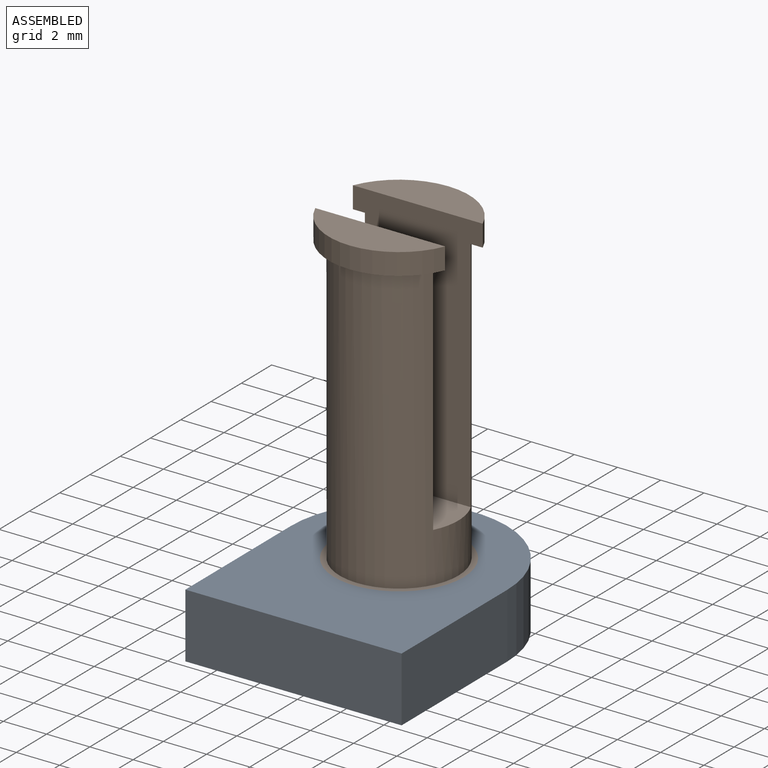
[diagram: assembled view]
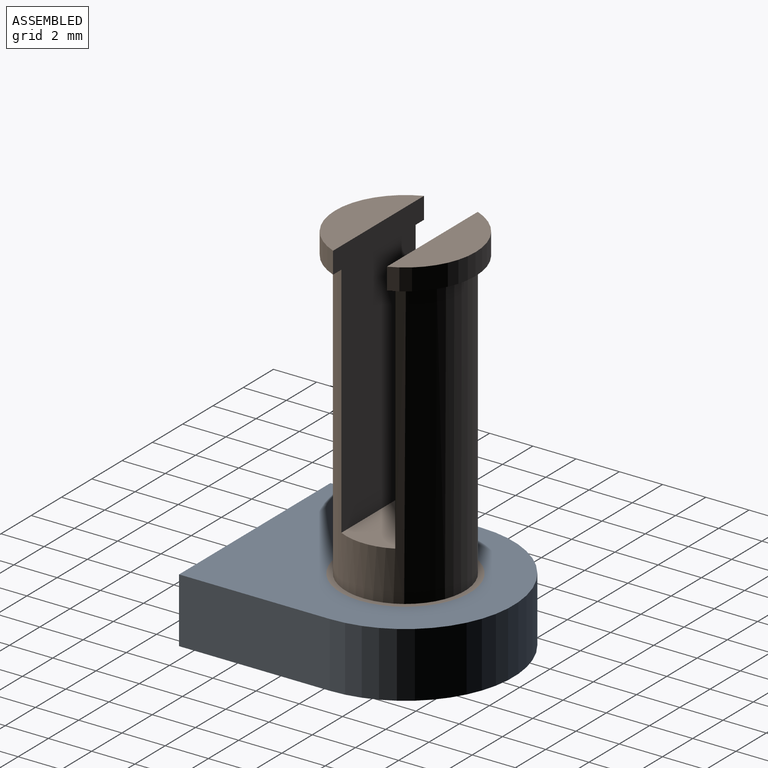
[diagram: assembled view, second angle]
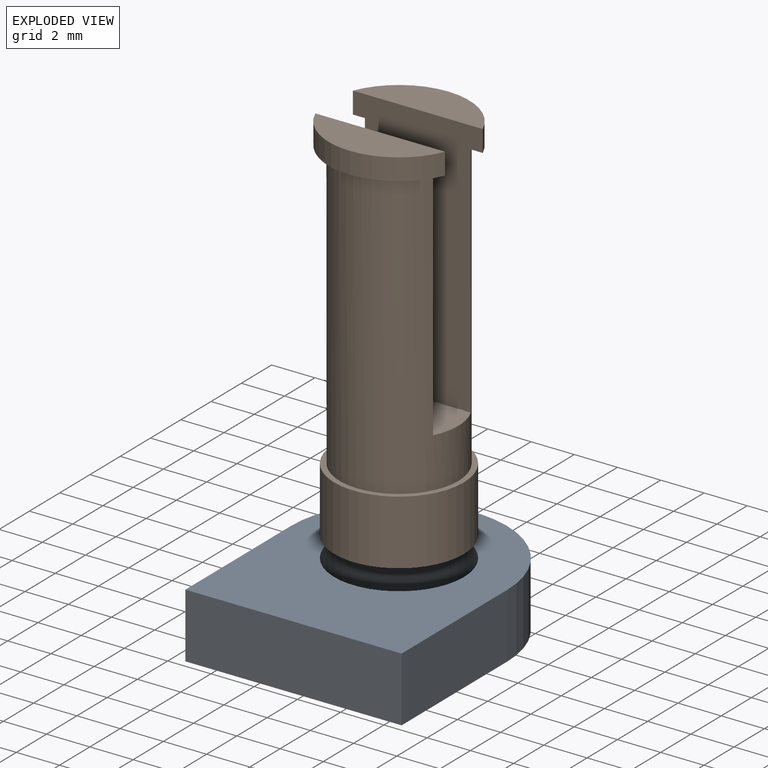
[diagram: exploded view]
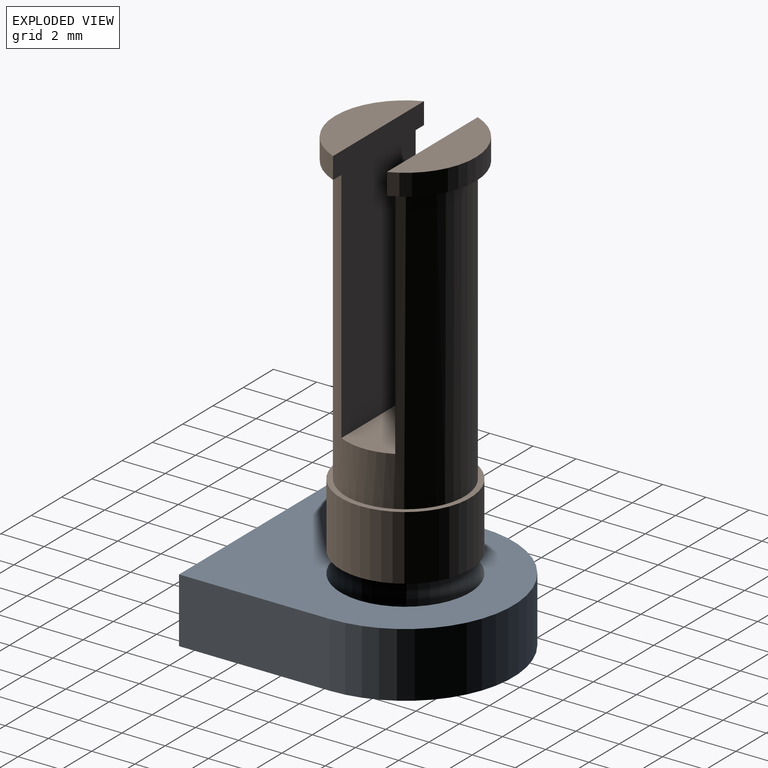
[diagram: exploded view, second angle]
ASSEMBLY  parts=2 mates=2
PART A: 7 faces, bbox 10x12x3 mm
  f0: plane 6.97x3mm, normal (-1,0,0), area 20.9mm2, adj f1,f4,f5,f6
  f1: plane 10x3mm, normal (0,-1,0), area 30mm2, adj f0,f2,f5,f6
  f2: plane 6.97x3mm, normal (1,0,0), area 20.9mm2, adj f1,f4,f5,f6
  f3: cylinder r=3mm len=6mm, axis (0,0,-1), area 56.5mm2, adj f5,f6
  f4: cylinder r=5mm len=10mm, axis (0,0,-1), area 47.1mm2, adj f0,f2,f5,f6
  f5: plane 11.97x10mm, normal (0,0,1), area 80.7mm2, adj f0,f1,f2,f3,f4
  f6: plane 11.97x10mm, normal (0,0,-1), area 80.7mm2, adj f0,f1,f2,f3,f4
PART B: 13 faces, bbox 6x6.5x17.3 mm
  f0: cylinder r=2.75mm len=13.3mm, axis (0,0,-1), area 173mm2, adj f3,f6,f7,f8,f9,f11
  f1: cylinder r=3.25mm len=6mm, axis (0,0,-1), area 7.7mm2, adj f2,f3,f8
  f2: plane 6x2.01mm, normal (0,0,1), area 8.7mm2, adj f1,f8
  f3: plane 6x2.01mm, normal (0,0,-1), area 3.4mm2, adj f0,f1,f8
  f4: cylinder r=3.25mm len=6mm, axis (0,0,-1), area 7.7mm2, adj f5,f6,f9
  f5: plane 6x2.01mm, normal (0,0,1), area 8.7mm2, adj f4,f9
  f6: plane 6x2.01mm, normal (0,0,-1), area 3.4mm2, adj f0,f4,f9
  f7: plane 5.5x2.49mm, normal (0,0,1), area 13.2mm2, adj f0,f8,f9
  f8: plane 12x6mm, normal (0,1,0), area 60mm2, adj f0,f1,f2,f3,f7
  f9: plane 12x6mm, normal (0,-1,0), area 60mm2, adj f0,f4,f5,f6,f7
  f10: cylinder r=3mm len=6mm, axis (0,0,-1), area 56.5mm2, adj f11,f12
  f11: plane 6x6mm, normal (0,0,1), area 4.5mm2, adj f0,f10
  f12: plane 6x6mm, normal (0,0,-1), area 28.3mm2, adj f10
PLACE A t=(-5,-3.48,-3)mm
PLACE B t=(21.7,-20.65,-3)mm
MATE planar B.f0 <-> A.f6  axis (0,0,-1) through (-30,42.71,-3)mm
MATE cylindrical A.f3 <-> B.f0  axis (0,0,1) through (-30,42.71,0)mm
